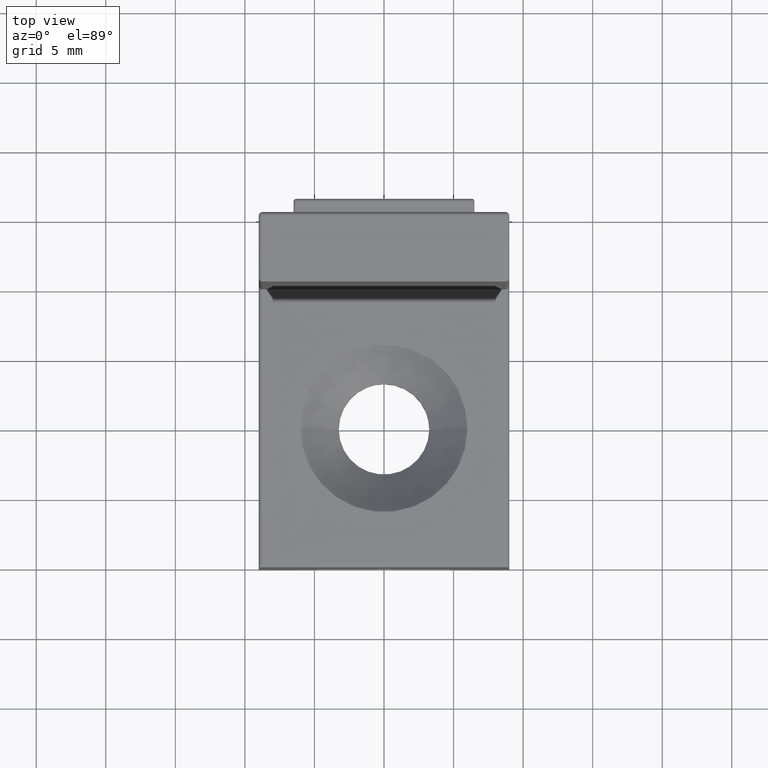
[diagram: clean part render]
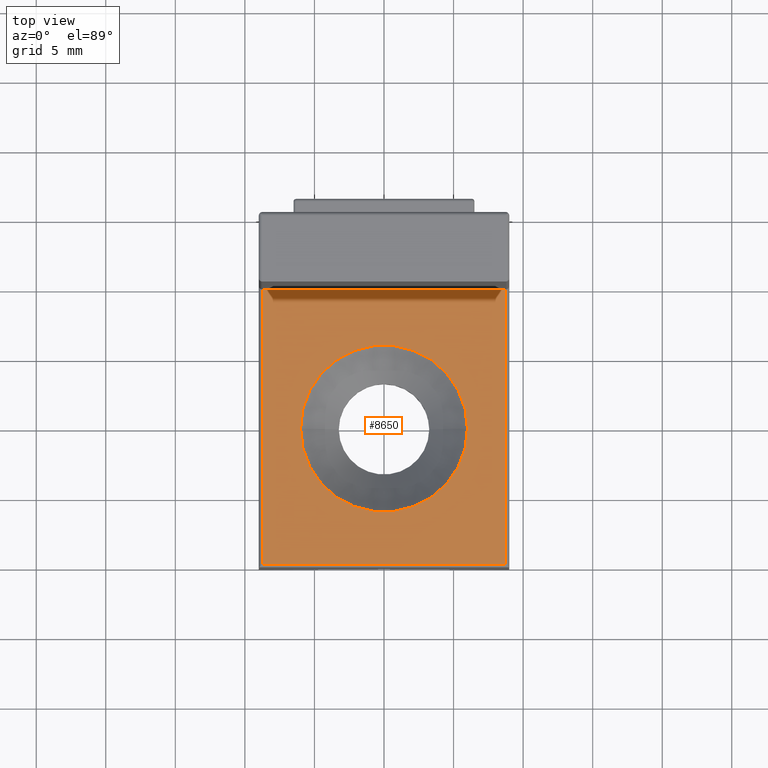
[diagram: same view with one face highlighted and labeled with its STEP entity id]
A machine part, top view. The second image highlights one B-rep face of the part: STEP entity #8650.
In plain terms, the highlighted planar face has unit normal (0, 0, -1).
Its self-contained STEP definition (entity closure, byte-faithful):
#10 = VECTOR ( 'NONE', #7489, 1000.000000000000000 ) ;
#359 = EDGE_CURVE ( 'NONE', #13747, #12794, #13753, .T. ) ;
#644 = DIRECTION ( 'NONE',  ( 0.0000000000000000000, -1.000000000000000000, -1.734723475976806800E-016 ) ) ;
#849 = VERTEX_POINT ( 'NONE', #4502 ) ;
#1537 = VECTOR ( 'NONE', #644, 1000.000000000000000 ) ;
#1602 = EDGE_CURVE ( 'NONE', #13422, #9094, #11846, .T. ) ;
#1877 = LINE ( 'NONE', #6083, #1537 ) ;
#2497 = CARTESIAN_POINT ( 'NONE',  ( -8.749999999999998200, -24.75000000000000000, 7.499999999999996400 ) ) ;
#2685 = AXIS2_PLACEMENT_3D ( 'NONE', #7696, #10970, #3284 ) ;
#2699 = DIRECTION ( 'NONE',  ( 1.000000000000000000, 0.0000000000000000000, 0.0000000000000000000 ) ) ;
#2929 = LINE ( 'NONE', #14043, #10 ) ;
#3014 = ORIENTED_EDGE ( 'NONE', *, *, #1602, .T. ) ;
#3033 = CARTESIAN_POINT ( 'NONE',  ( 8.749999999999998200, -4.999999999999999100, 7.500000000000000000 ) ) ;
#3138 = DIRECTION ( 'NONE',  ( 1.000000000000000000, 0.0000000000000000000, 0.0000000000000000000 ) ) ;
#3284 = DIRECTION ( 'NONE',  ( 0.0000000000000000000, 1.000000000000000000, 1.734723475976806800E-016 ) ) ;
#3484 = DIRECTION ( 'NONE',  ( -1.000000000000000000, -0.0000000000000000000, -0.0000000000000000000 ) ) ;
#4273 = EDGE_LOOP ( 'NONE', ( #11154, #10660 ) ) ;
#4334 = DIRECTION ( 'NONE',  ( -0.0000000000000000000, -0.0000000000000000000, 1.000000000000000000 ) ) ;
#4502 = CARTESIAN_POINT ( 'NONE',  ( 8.749999999999998200, -24.75000000000000000, 7.499999999999996400 ) ) ;
#4617 = FACE_BOUND ( 'NONE', #4273, .T. ) ;
#4702 = EDGE_CURVE ( 'NONE', #12794, #13747, #13510, .T. ) ;
#5099 = EDGE_LOOP ( 'NONE', ( #10982, #12318, #3014, #5736 ) ) ;
#5693 = VECTOR ( 'NONE', #3484, 1000.000000000000000 ) ;
#5736 = ORIENTED_EDGE ( 'NONE', *, *, #7720, .T. ) ;
#6083 = CARTESIAN_POINT ( 'NONE',  ( -8.749999999999998200, -25.00000000000000000, 7.499999999999996400 ) ) ;
#6556 = CARTESIAN_POINT ( 'NONE',  ( 8.749999999999998200, -4.999999999999999100, 7.500000000000000000 ) ) ;
#6558 = EDGE_CURVE ( 'NONE', #7194, #849, #2929, .T. ) ;
#6642 = DIRECTION ( 'NONE',  ( -0.0000000000000000000, 1.000000000000000000, 1.734723475976806800E-016 ) ) ;
#7194 = VERTEX_POINT ( 'NONE', #2497 ) ;
#7332 = AXIS2_PLACEMENT_3D ( 'NONE', #8235, #10275, #2699 ) ;
#7489 = DIRECTION ( 'NONE',  ( 1.000000000000000000, -0.0000000000000000000, -0.0000000000000000000 ) ) ;
#7696 = CARTESIAN_POINT ( 'NONE',  ( 9.000000000000000000, -4.999999999999999100, 7.500000000000000000 ) ) ;
#7711 = VECTOR ( 'NONE', #6642, 1000.000000000000000 ) ;
#7720 = EDGE_CURVE ( 'NONE', #9094, #7194, #1877, .T. ) ;
#8235 = CARTESIAN_POINT ( 'NONE',  ( 1.836970198721029600E-015, -15.00000000000000000, 7.500000000000000900 ) ) ;
#8239 = AXIS2_PLACEMENT_3D ( 'NONE', #14194, #4334, #3138 ) ;
#8424 = EDGE_CURVE ( 'NONE', #849, #13422, #8766, .T. ) ;
#8650 = ADVANCED_FACE ( 'NONE', ( #4617, #13037 ), #11066, .F. ) ;
#8766 = LINE ( 'NONE', #6556, #7711 ) ;
#9094 = VERTEX_POINT ( 'NONE', #11216 ) ;
#9144 = CARTESIAN_POINT ( 'NONE',  ( 9.000000000000000000, -4.999999999999999100, 7.500000000000000000 ) ) ;
#10275 = DIRECTION ( 'NONE',  ( -0.0000000000000000000, -0.0000000000000000000, 1.000000000000000000 ) ) ;
#10660 = ORIENTED_EDGE ( 'NONE', *, *, #4702, .F. ) ;
#10970 = DIRECTION ( 'NONE',  ( 0.0000000000000000000, 1.734723475976806800E-016, -1.000000000000000000 ) ) ;
#10982 = ORIENTED_EDGE ( 'NONE', *, *, #6558, .T. ) ;
#11066 = PLANE ( 'NONE',  #2685 ) ;
#11154 = ORIENTED_EDGE ( 'NONE', *, *, #359, .F. ) ;
#11216 = CARTESIAN_POINT ( 'NONE',  ( -8.749999999999998200, -4.999999999999999100, 7.500000000000000000 ) ) ;
#11846 = LINE ( 'NONE', #9144, #5693 ) ;
#12318 = ORIENTED_EDGE ( 'NONE', *, *, #8424, .T. ) ;
#12794 = VERTEX_POINT ( 'NONE', #12945 ) ;
#12945 = CARTESIAN_POINT ( 'NONE',  ( -5.999999999999998200, -15.00000000000000000, 7.500000000000000900 ) ) ;
#13037 = FACE_OUTER_BOUND ( 'NONE', #5099, .T. ) ;
#13422 = VERTEX_POINT ( 'NONE', #3033 ) ;
#13510 = CIRCLE ( 'NONE', #7332, 6.000000000000000000 ) ;
#13747 = VERTEX_POINT ( 'NONE', #13992 ) ;
#13753 = CIRCLE ( 'NONE', #8239, 6.000000000000000000 ) ;
#13992 = CARTESIAN_POINT ( 'NONE',  ( 6.000000000000001800, -15.00000000000000000, 7.500000000000000900 ) ) ;
#14043 = CARTESIAN_POINT ( 'NONE',  ( 9.000000000000000000, -24.75000000000000000, 7.499999999999996400 ) ) ;
#14194 = CARTESIAN_POINT ( 'NONE',  ( 1.836970198721029600E-015, -15.00000000000000000, 7.500000000000000900 ) ) ;